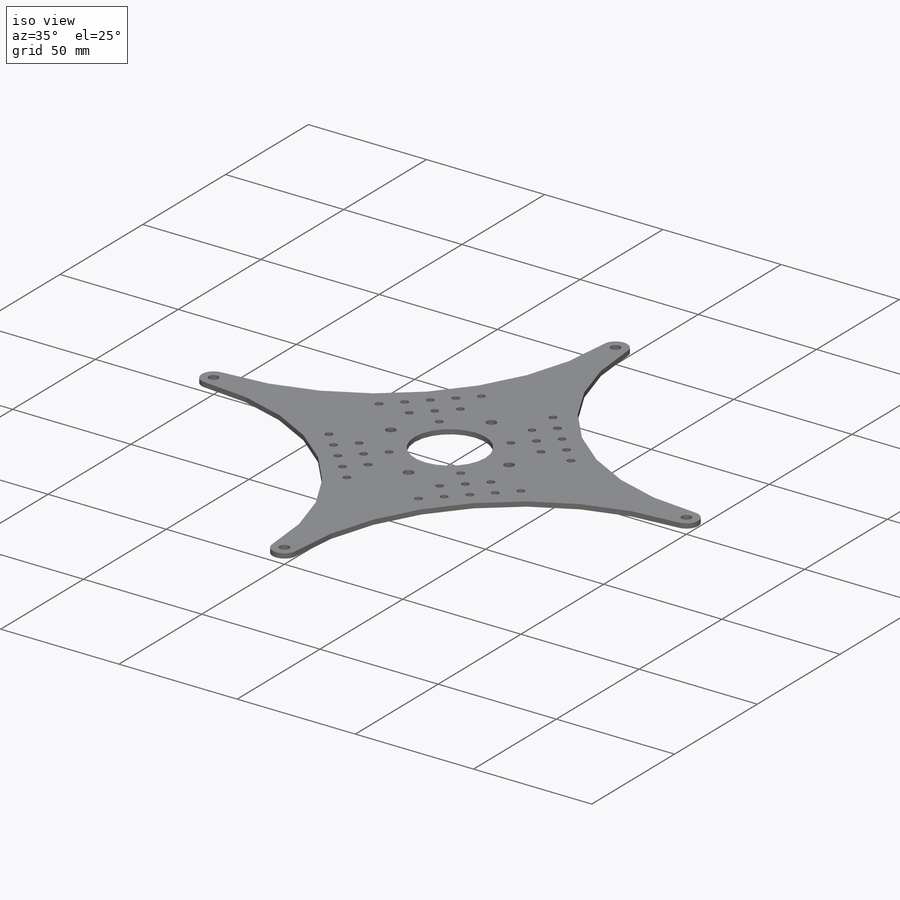
[diagram: iso view]
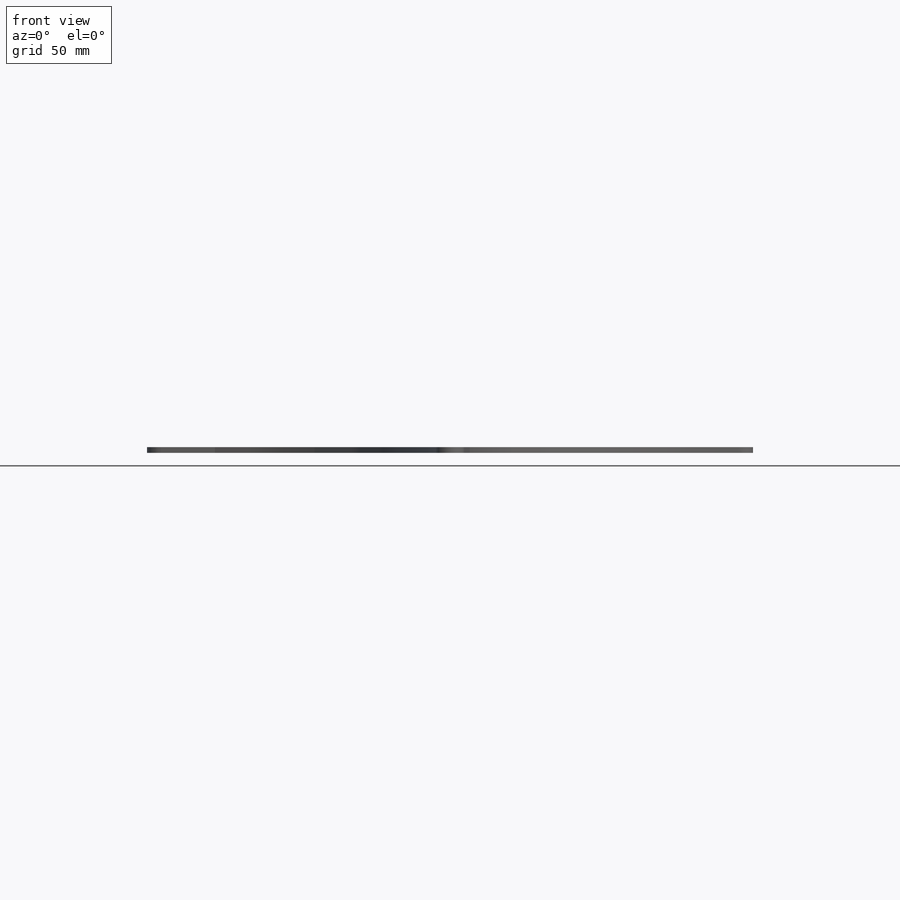
[diagram: front view]
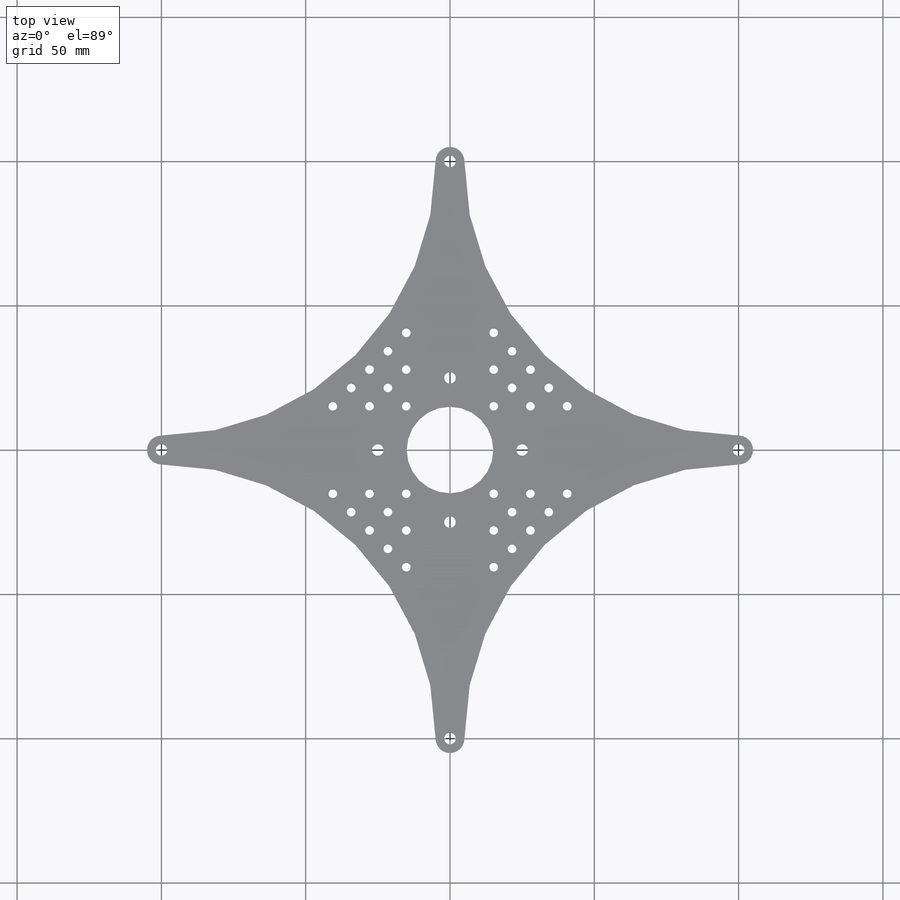
[diagram: top view]
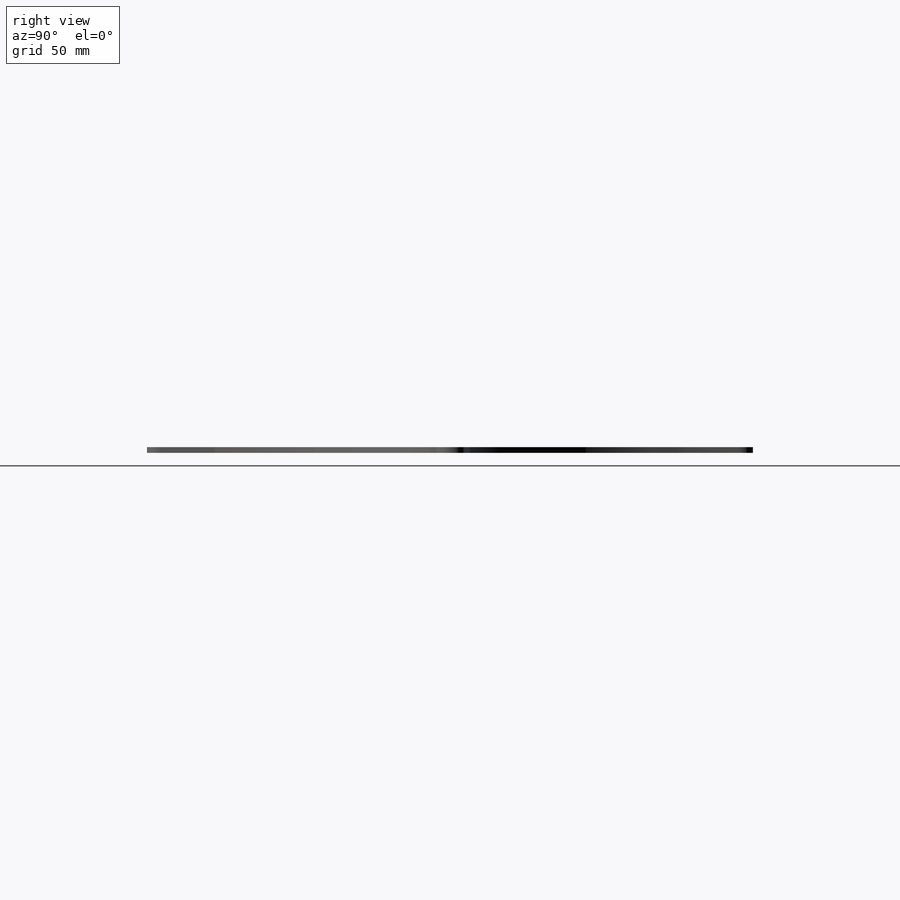
[diagram: right view]
SOLIDWORKS PART (.sldprt)
format: sldprt  version: not decoded by parser v0  size: 373,760 bytes
history: native  units: mm
features: sketch x5, cut_extrude x3, pattern_circular x2, material x1, extrude x1 (+12 scaffold rows collapsed)
feature tree (24):
  scaffold x12  (default folders/planes/origin — collapsed)
  material  "Материал <не указан>"
  sketch  "Эскиз1"  dims[c1.D1=5.0mm c1.D2=95.0mm c1.D4=5.0mm c2.D1=10.0mm c2.D2=200.0mm c2.D3=200.0mm c2.D4=200.0mm]
  extrude  "основа"  Depth=2mm
  sketch  "Эскиз2"  dims[D1=4.0mm D2=75.0mm D3=105.0mm]
  cut_extrude  "отверстия под балку"  [1 undecoded]
  sketch  "ось"
  pattern_circular  "отверстия под балки"  Count=4 Angle=90deg
  sketch  "Эскиз4"  dims[D1=30.0mm]
  cut_extrude  "отверстие центр"  [1 undecoded]
  sketch  "Эскиз5"  dims[c1.D1=3.0mm c1.D2=22.0mm c1.D3=17.0mm c1.D4=17.0mm c1.D5=17.0mm c1.D6=8.5mm c1.D7=8.5mm c1.D8=8.5mm c2.D1=18.0mm c2.D3=7.0mm c2.D4=3.0 c2.D5=5.0]
  cut_extrude  "отверстия под детали"  [1 undecoded]
  pattern_circular  "Круговой массив2"  Count=4 Angle=90deg
decode coverage: 7 of 11 modeling features carry decoded parameters
note: 3 parameter values undecoded
summary: no parameter record found for 3 features
note: suppression state not decoded; provenance and decode notes live in map.json
